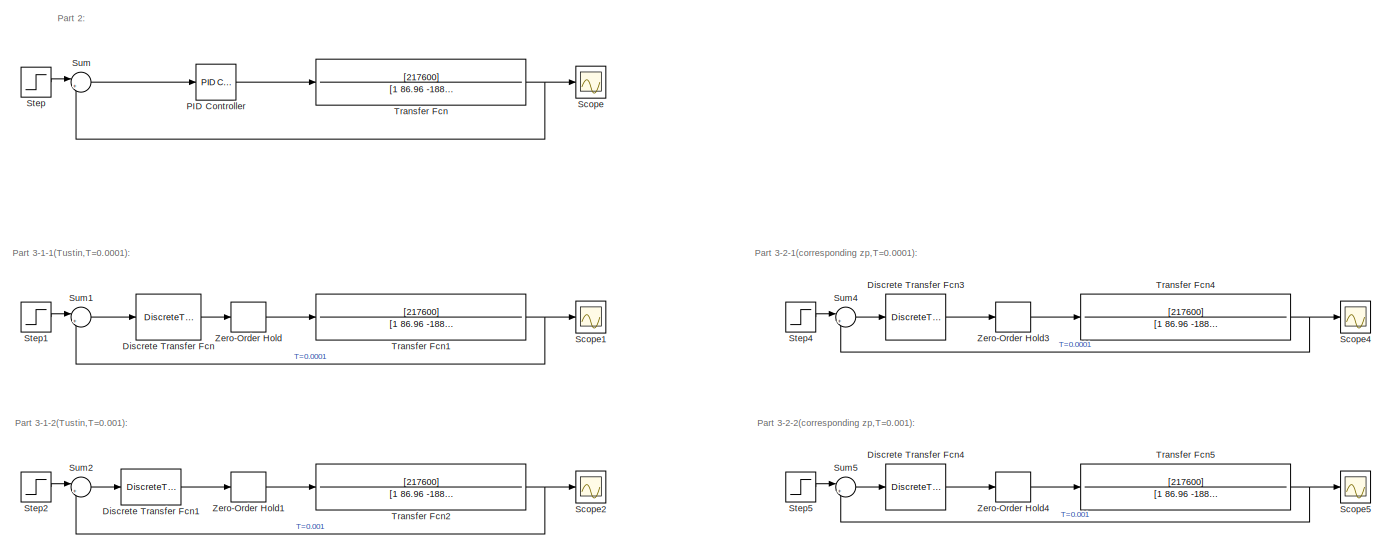
[diagram: root canvas - part 1/3, full width, top band]
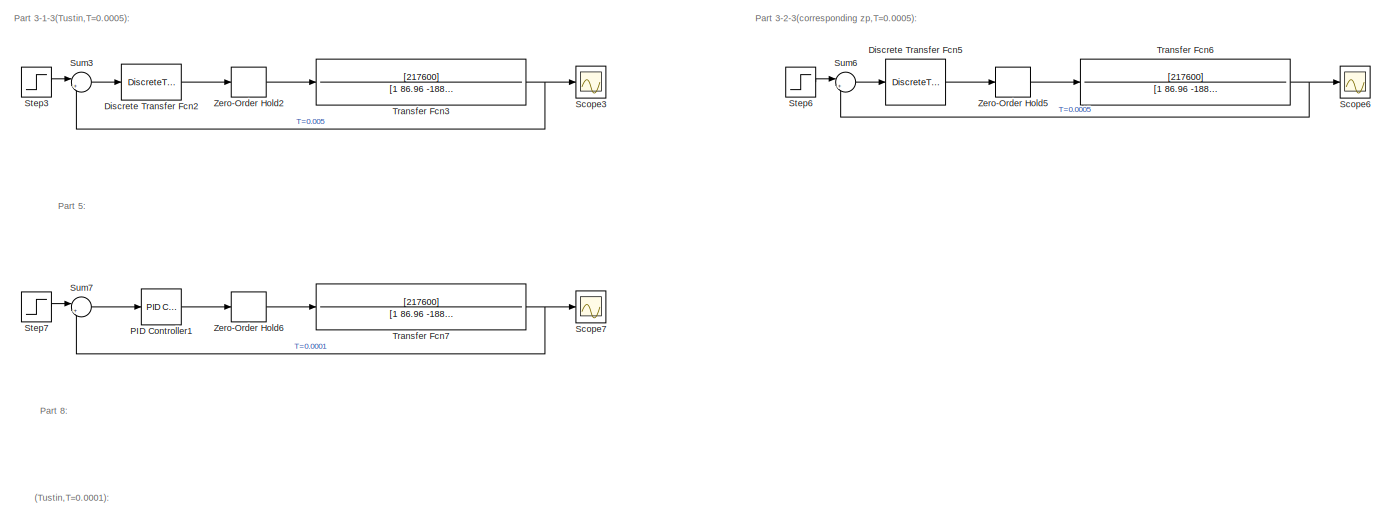
[diagram: root canvas - part 2/3, full width, middle band]
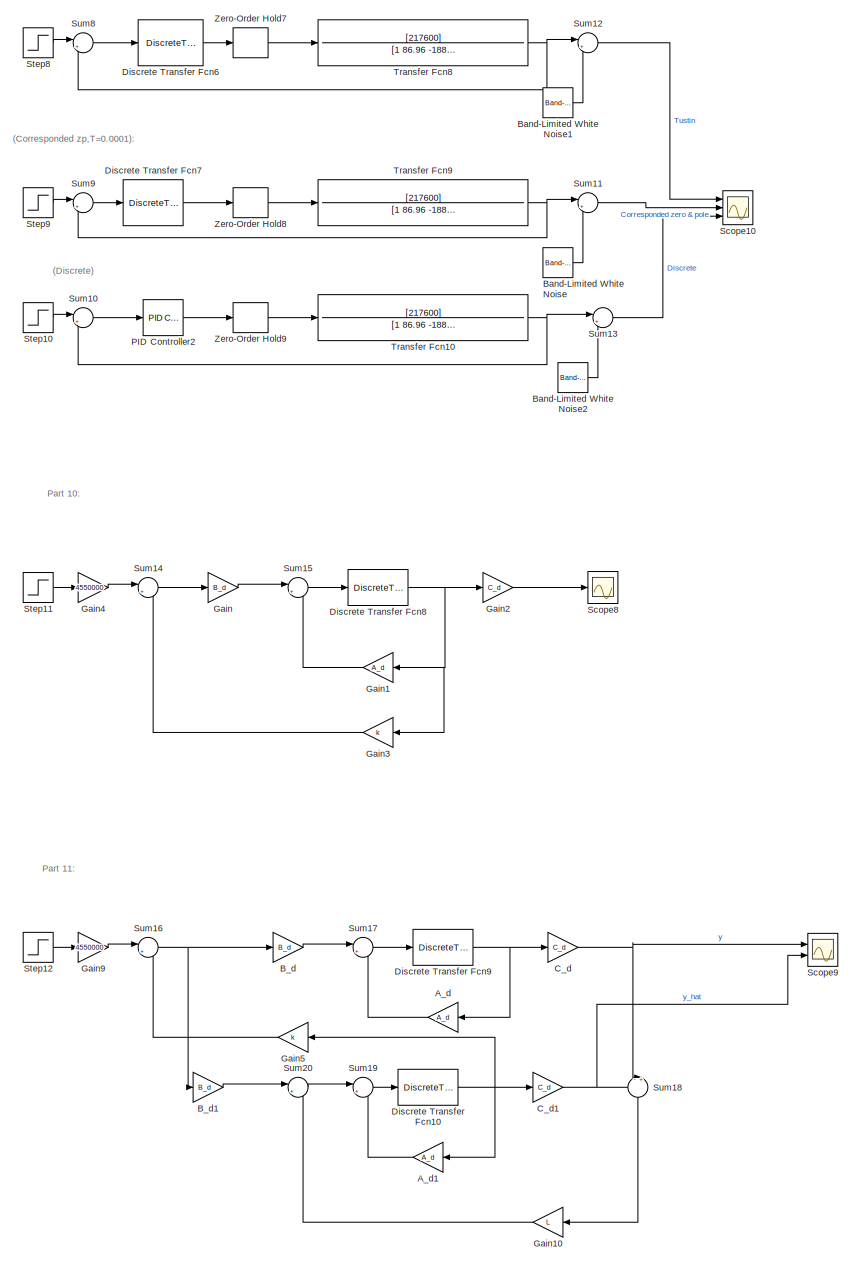
[diagram: root canvas - part 3/3, bottom left region]
MODEL slx_f297e5790525
KIND model
CONFIG AbsTol = auto
CONFIG EnableMultiTasking = off
CONFIG FixedStep = auto
CONFIG MaxStep = auto
CONFIG MinStep = auto
CONFIG RelTol = 1e-3
CONFIG SampleTimeConstraint = Unconstrained
CONFIG SolverName = VariableStepAuto
CONFIG StartTime = 0.0
CONFIG StopTime = 0.01
BLOCK [Gain] A_d
  Gain = A_d
  Multiplication = Matrix(K*u)
  NameLocation = top
BLOCK [Gain] A_d1
  Gain = A_d
  Multiplication = Matrix(K*u)
  NameLocation = top
BLOCK [Gain] B_d
  Gain = B_d
  Multiplication = Matrix(K*u)
BLOCK [Gain] B_d1
  Gain = B_d
  Multiplication = Matrix(K*u)
BLOCK [Reference] Band-Limited White Noise  REF=simulink/Sources/Band-Limited
White Noise
  Ports = [0, 1]
  SourceBlock = simulink/Sources/Band-Limited\nWhite Noise
  SourceProductBaseCode = SL
  SourceType = Band-Limited White Noise.
BLOCK [Reference] Band-Limited White Noise1  REF=simulink/Sources/Band-Limited
White Noise
  Ports = [0, 1]
  SourceBlock = simulink/Sources/Band-Limited\nWhite Noise
  SourceProductBaseCode = SL
  SourceType = Band-Limited White Noise.
BLOCK [Reference] Band-Limited White Noise2  REF=simulink/Sources/Band-Limited
White Noise
  Ports = [0, 1]
  SourceBlock = simulink/Sources/Band-Limited\nWhite Noise
  SourceProductBaseCode = SL
  SourceType = Band-Limited White Noise.
BLOCK [Gain] C_d
  Gain = C_d
  Multiplication = Matrix(K*u)
BLOCK [Gain] C_d1
  Gain = C_d
  Multiplication = Matrix(K*u)
BLOCK [DiscreteTransferFcn] Discrete Transfer Fcn
  Denominator = [9.86914200000000 -8 -1.86914200000000]
  InputPortMap = u0
  Numerator = [38570.0258267180 -77058.6188660459 38488.6093872360]
  Ports = [1, 1]
  SampleTime = 0.0001
BLOCK [DiscreteTransferFcn] Discrete Transfer Fcn1
  Denominator = [62.6914200000000 -8 -54.6914200000000]
  InputPortMap = u0
  Numerator = [38936.8044151132 -77057.8096445937 38122.6400202932]
  Ports = [1, 1]
  SampleTime = 0.001
BLOCK [DiscreteTransferFcn] Discrete Transfer Fcn10
  Denominator = [1 0]
  InputPortMap = u0
  Ports = [1, 1]
BLOCK [DiscreteTransferFcn] Discrete Transfer Fcn2
  Denominator = [33.3457100000000 -8.00000000000000 -25.3457100000000]
  InputPortMap = u0
  Numerator = [38732.9567931308 -77058.4226911484 38325.8745957208]
  Ports = [1, 1]
  SampleTime = 0.0005
BLOCK [DiscreteTransferFcn] Discrete Transfer Fcn3
  Denominator = [1 -1.05315351727480 0.0531535172747958]
  InputPortMap = u0
  Numerator = 1000*[1 -1.99788732081826 0.997889127214699]
  Ports = [1, 1]
  SampleTime = 0.0001
BLOCK [DiscreteTransferFcn] Discrete Transfer Fcn4
  Denominator = [1 -1.00000000000018 1.80019719003715e-13]
  InputPortMap = u0
  Numerator = 1000*[1 -1.97891172719588 0.979090657910839]
  Ports = [1, 1]
  SampleTime = 0.001
BLOCK [DiscreteTransferFcn] Discrete Transfer Fcn5
  Denominator = [1 -1.00000042428731 4.24287307144245e-07]
  InputPortMap = u0
  Numerator = [1000 -1989.44513045919 989.490099955951]
  Ports = [1, 1]
  SampleTime = 0.0005
BLOCK [DiscreteTransferFcn] Discrete Transfer Fcn6
  Denominator = [9.86914200000000 -8 -1.86914200000000]
  InputPortMap = u0
  Numerator = [38570.0258267180 -77058.6188660459 38488.6093872360]
  Ports = [1, 1]
  SampleTime = 0.0001
BLOCK [DiscreteTransferFcn] Discrete Transfer Fcn7
  Denominator = [1 -1.05315351727480 0.0531535172747958]
  InputPortMap = u0
  Numerator = 1000*[1 -1.99788732081826 0.997889127214699]
  Ports = [1, 1]
  SampleTime = 0.0001
BLOCK [DiscreteTransferFcn] Discrete Transfer Fcn8
  Denominator = [1 0]
  InputPortMap = u0
  Ports = [1, 1]
BLOCK [DiscreteTransferFcn] Discrete Transfer Fcn9
  Denominator = [1 0]
  InputPortMap = u0
  Ports = [1, 1]
BLOCK [Gain] Gain
  Gain = B_d
  Multiplication = Matrix(K*u)
BLOCK [Gain] Gain1
  Gain = A_d
  Multiplication = Matrix(K*u)
  NameLocation = top
BLOCK [Gain] Gain10
  Gain = L
  Multiplication = Matrix(K*u)
  NameLocation = top
BLOCK [Gain] Gain2
  Gain = C_d
  Multiplication = Matrix(K*u)
BLOCK [Gain] Gain3
  Gain = k
  Multiplication = Matrix(K*u)
  NameLocation = top
BLOCK [Gain] Gain4
  Gain = 4550000
BLOCK [Gain] Gain5
  Gain = k
  Multiplication = Matrix(K*u)
  NameLocation = top
BLOCK [Gain] Gain9
  Gain = 4550000
BLOCK [Reference] PID Controller  REF=slpidlib/PID Controller
  Ports = [1, 1]
  SourceBlock = slpidlib/PID Controller
  SourceProductBaseCode = SL
  SourceType = PID 1dof
BLOCK [Reference] PID Controller1  REF=slpidlib/PID Controller
  Ports = [1, 1]
  SourceBlock = slpidlib/PID Controller
  SourceProductBaseCode = SL
  SourceType = PID 1dof
BLOCK [Reference] PID Controller2  REF=slpidlib/PID Controller
  Ports = [1, 1]
  SourceBlock = slpidlib/PID Controller
  SourceProductBaseCode = SL
  SourceType = PID 1dof
BLOCK [Scope] Scope
  Floating = off
  NumInputPorts = 1
  Ports = [1]
  ScopeSpecificationString = Simulink.scopes.TimeScopeBlockCfg('CurrentConfiguration', extmgr.ConfigurationSet(extmgr.Configuration('Core','General UI',true,'FigureColor',[1 1 1]),extmgr.Configuration('Core','Source UI',true),extmgr.Configuration('Sources','WiredSimulink',true),extmgr.Configuration('Visuals','Time Domain',true,'SerializedDisplays',{struct('MinYLimReal','-0.22122','MaxYLimReal','1.991','YLabelReal','','MinYLim...<+1395ch>
BLOCK [Scope] Scope1
  Floating = off
  NumInputPorts = 1
  Ports = [1]
  ScopeSpecificationString = Simulink.scopes.TimeScopeBlockCfg('CurrentConfiguration', extmgr.ConfigurationSet(extmgr.Configuration('Core','General UI',true,'FigureColor',[1 1 1]),extmgr.Configuration('Core','Source UI',true),extmgr.Configuration('Sources','WiredSimulink',true,'DataLoggingVariableName','ScopeData1'),extmgr.Configuration('Visuals','Time Domain',true,'SerializedDisplays',{struct('MinYLimReal','-0.22322','MaxYLi...<+1438ch>
BLOCK [Scope] Scope10
  Floating = off
  NumInputPorts = 3
  Ports = [3]
  ScopeSpecificationString = Simulink.scopes.TimeScopeBlockCfg('CurrentConfiguration', extmgr.ConfigurationSet(extmgr.Configuration('Core','General UI',true,'FigureColor',[1 1 1]),extmgr.Configuration('Core','Source UI',true),extmgr.Configuration('Sources','WiredSimulink',true,'DataLoggingVariableName','ScopeData3'),extmgr.Configuration('Visuals','Time Domain',true,'SerializedDisplays',{struct('MinYLimReal','-0.21833','MaxYLi...<+1514ch>
BLOCK [Scope] Scope2
  Floating = off
  NumInputPorts = 1
  Ports = [1]
  ScopeSpecificationString = Simulink.scopes.TimeScopeBlockCfg('CurrentConfiguration', extmgr.ConfigurationSet(extmgr.Configuration('Core','General UI',true,'FigureColor',[1 1 1]),extmgr.Configuration('Core','Source UI',true),extmgr.Configuration('Sources','WiredSimulink',true,'DataLoggingVariableName','ScopeData2'),extmgr.Configuration('Visuals','Time Domain',true,'SerializedDisplays',{struct('MinYLimReal','-0.24372','MaxYLi...<+1436ch>
BLOCK [Scope] Scope3
  Floating = off
  NumInputPorts = 1
  Ports = [1]
  ScopeSpecificationString = Simulink.scopes.TimeScopeBlockCfg('CurrentConfiguration', extmgr.ConfigurationSet(extmgr.Configuration('Core','General UI',true,'FigureColor',[1 1 1]),extmgr.Configuration('Core','Source UI',true),extmgr.Configuration('Sources','WiredSimulink',true,'DataLoggingVariableName','ScopeData3'),extmgr.Configuration('Visuals','Time Domain',true,'SerializedDisplays',{struct('MinYLimReal','-0.23172','MaxYLi...<+1437ch>
BLOCK [Scope] Scope4
  Floating = off
  NumInputPorts = 1
  Ports = [1]
  ScopeSpecificationString = Simulink.scopes.TimeScopeBlockCfg('CurrentConfiguration', extmgr.ConfigurationSet(extmgr.Configuration('Core','General UI',true,'FigureColor',[1 1 1]),extmgr.Configuration('Core','Source UI',true),extmgr.Configuration('Sources','WiredSimulink',true,'DataLoggingVariableName','ScopeData4'),extmgr.Configuration('Visuals','Time Domain',true,'SerializedDisplays',{struct('MinYLimReal','-0.22385','MaxYLi...<+1436ch>
BLOCK [Scope] Scope5
  Floating = off
  NumInputPorts = 1
  Ports = [1]
  ScopeSpecificationString = Simulink.scopes.TimeScopeBlockCfg('CurrentConfiguration', extmgr.ConfigurationSet(extmgr.Configuration('Core','General UI',true,'FigureColor',[1 1 1]),extmgr.Configuration('Core','Source UI',true),extmgr.Configuration('Sources','WiredSimulink',true,'DataLoggingVariableName','ScopeData1'),extmgr.Configuration('Visuals','Time Domain',true,'SerializedDisplays',{struct('MinYLimReal','-3657307134457941...<+3595ch>
BLOCK [Scope] Scope6
  Floating = off
  NumInputPorts = 1
  Ports = [1]
  ScopeSpecificationString = Simulink.scopes.TimeScopeBlockCfg('CurrentConfiguration', extmgr.ConfigurationSet(extmgr.Configuration('Core','General UI',true,'FigureColor',[1 1 1]),extmgr.Configuration('Core','Source UI',true),extmgr.Configuration('Sources','WiredSimulink',true,'DataLoggingVariableName','ScopeData2'),extmgr.Configuration('Visuals','Time Domain',true,'SerializedDisplays',{struct('MinYLimReal','-0.25137','MaxYLi...<+1437ch>
BLOCK [Scope] Scope7
  Floating = off
  NumInputPorts = 1
  Ports = [1]
  ScopeSpecificationString = Simulink.scopes.TimeScopeBlockCfg('CurrentConfiguration', extmgr.ConfigurationSet(extmgr.Configuration('Core','General UI',true,'FigureColor',[1 1 1]),extmgr.Configuration('Core','Source UI',true),extmgr.Configuration('Sources','WiredSimulink',true,'DataLoggingVariableName','ScopeData3'),extmgr.Configuration('Visuals','Time Domain',true,'SerializedDisplays',{struct('MinYLimReal','-0.2296','MaxYLim...<+1436ch>
BLOCK [Scope] Scope8
  Floating = off
  NumInputPorts = 1
  Ports = [1]
  ScopeSpecificationString = Simulink.scopes.TimeScopeBlockCfg('CurrentConfiguration', extmgr.ConfigurationSet(extmgr.Configuration('Core','General UI',true,'FigureColor',[1 1 1]),extmgr.Configuration('Core','Source UI',true),extmgr.Configuration('Sources','WiredSimulink',true,'DataLoggingVariableName','ScopeData1'),extmgr.Configuration('Visuals','Time Domain',true,'SerializedDisplays',{struct('MinYLimReal','-0.00025','MaxYLi...<+1431ch>
BLOCK [Scope] Scope9
  Floating = off
  NumInputPorts = 2
  Ports = [2]
  ScopeSpecificationString = Simulink.scopes.TimeScopeBlockCfg('CurrentConfiguration', extmgr.ConfigurationSet(extmgr.Configuration('Core','General UI',true,'FigureColor',[1 1 1]),extmgr.Configuration('Core','Source UI',true),extmgr.Configuration('Sources','WiredSimulink',true,'DataLoggingVariableName','ScopeData1'),extmgr.Configuration('Visuals','Time Domain',true,'SerializedDisplays',{struct('MinYLimReal','-0.12456','MaxYLi...<+1559ch>
BLOCK [Step] Step
  SampleTime = 0
  Time = 0
BLOCK [Step] Step1
  SampleTime = 0
  Time = 0
BLOCK [Step] Step10
  SampleTime = 0
  Time = 0
BLOCK [Step] Step11
  After = 2e-3
  SampleTime = 0
  Time = 0
BLOCK [Step] Step12
  SampleTime = 0
  Time = 0
BLOCK [Step] Step2
  SampleTime = 0
  Time = 0
BLOCK [Step] Step3
  SampleTime = 0
  Time = 0
BLOCK [Step] Step4
  SampleTime = 0
  Time = 0
BLOCK [Step] Step5
  SampleTime = 0
  Time = 0
BLOCK [Step] Step6
  SampleTime = 0
  Time = 0
BLOCK [Step] Step7
  SampleTime = 0
  Time = 0
BLOCK [Step] Step8
  SampleTime = 0
  Time = 0
BLOCK [Step] Step9
  SampleTime = 0
  Time = 0
BLOCK [Sum] Sum
  Inputs = |+-
  Ports = [2, 1]
BLOCK [Sum] Sum1
  Inputs = |+-
  Ports = [2, 1]
BLOCK [Sum] Sum10
  Inputs = |+-
  Ports = [2, 1]
BLOCK [Sum] Sum11
  Inputs = |++
  Ports = [2, 1]
BLOCK [Sum] Sum12
  Inputs = |++
  Ports = [2, 1]
BLOCK [Sum] Sum13
  Inputs = |++
  Ports = [2, 1]
BLOCK [Sum] Sum14
  Inputs = |+-
  Ports = [2, 1]
BLOCK [Sum] Sum15
  Inputs = |++
  Ports = [2, 1]
BLOCK [Sum] Sum16
  Inputs = |+-
  Ports = [2, 1]
BLOCK [Sum] Sum17
  Inputs = |++
  Ports = [2, 1]
BLOCK [Sum] Sum18
  Inputs = -+|
  NameLocation = left
  Ports = [2, 1]
BLOCK [Sum] Sum19
  Inputs = |++
  Ports = [2, 1]
BLOCK [Sum] Sum2
  Inputs = |+-
  Ports = [2, 1]
BLOCK [Sum] Sum20
  Inputs = |++
  Ports = [2, 1]
BLOCK [Sum] Sum3
  Inputs = |+-
  Ports = [2, 1]
BLOCK [Sum] Sum4
  Inputs = |+-
  Ports = [2, 1]
BLOCK [Sum] Sum5
  Inputs = |+-
  Ports = [2, 1]
BLOCK [Sum] Sum6
  Inputs = |+-
  Ports = [2, 1]
BLOCK [Sum] Sum7
  Inputs = |+-
  Ports = [2, 1]
BLOCK [Sum] Sum8
  Inputs = |+-
  Ports = [2, 1]
BLOCK [Sum] Sum9
  Inputs = |+-
  Ports = [2, 1]
BLOCK [TransferFcn] Transfer Fcn
  Denominator = [1 86.96 -1887 -164000]
  Numerator = [217600]
BLOCK [TransferFcn] Transfer Fcn1
  Denominator = [1 86.96 -1887 -164000]
  Numerator = [217600]
BLOCK [TransferFcn] Transfer Fcn10
  Denominator = [1 86.96 -1887 -164000]
  Numerator = [217600]
BLOCK [TransferFcn] Transfer Fcn2
  Denominator = [1 86.96 -1887 -164000]
  Numerator = [217600]
BLOCK [TransferFcn] Transfer Fcn3
  Denominator = [1 86.96 -1887 -164000]
  Numerator = [217600]
BLOCK [TransferFcn] Transfer Fcn4
  Denominator = [1 86.96 -1887 -164000]
  Numerator = [217600]
BLOCK [TransferFcn] Transfer Fcn5
  Denominator = [1 86.96 -1887 -164000]
  Numerator = [217600]
BLOCK [TransferFcn] Transfer Fcn6
  Denominator = [1 86.96 -1887 -164000]
  Numerator = [217600]
BLOCK [TransferFcn] Transfer Fcn7
  Denominator = [1 86.96 -1887 -164000]
  Numerator = [217600]
BLOCK [TransferFcn] Transfer Fcn8
  Denominator = [1 86.96 -1887 -164000]
  Numerator = [217600]
BLOCK [TransferFcn] Transfer Fcn9
  Denominator = [1 86.96 -1887 -164000]
  Numerator = [217600]
BLOCK [ZeroOrderHold] Zero-Order Hold
  SampleTime = 0.0001
BLOCK [ZeroOrderHold] Zero-Order Hold1
  SampleTime = 0.001
BLOCK [ZeroOrderHold] Zero-Order Hold2
  SampleTime = 0.0005
BLOCK [ZeroOrderHold] Zero-Order Hold3
  SampleTime = 0.0001
BLOCK [ZeroOrderHold] Zero-Order Hold4
  SampleTime = 0.001
BLOCK [ZeroOrderHold] Zero-Order Hold5
  SampleTime = 0.0005
BLOCK [ZeroOrderHold] Zero-Order Hold6
  SampleTime = 0.0001
BLOCK [ZeroOrderHold] Zero-Order Hold7
  SampleTime = 0.0001
BLOCK [ZeroOrderHold] Zero-Order Hold8
  SampleTime = 0.0001
BLOCK [ZeroOrderHold] Zero-Order Hold9
  SampleTime = 0.0001
ANNOTATION (root): (Corresponded zp,T=0.0001):
ANNOTATION (root): (Tustin,T=0.0001):
ANNOTATION (root): Part 10:
ANNOTATION (root): Part 11:
ANNOTATION (root): Part 2:
ANNOTATION (root): Part 3-1-1(Tustin,T=0.0001):
ANNOTATION (root): Part 3-1-2(Tustin,T=0.001):
ANNOTATION (root): Part 3-1-3(Tustin,T=0.0005):
ANNOTATION (root): Part 3-2-1(corresponding zp,T=0.0001):
ANNOTATION (root): Part 3-2-2(corresponding zp,T=0.001):
ANNOTATION (root): Part 3-2-3(corresponding zp,T=0.0005):
ANNOTATION (root): Part 5:
ANNOTATION (root): (Discrete)
ANNOTATION (root): Part 8:
LINE A_d1:1 -> Sum19:2
LINE A_d:1 -> Sum17:2
LINE B_d1:1 -> Sum20:1
LINE B_d:1 -> Sum17:1
LINE Band-Limited White Noise1:1 -> Sum12:2
LINE Band-Limited White Noise2:1 -> Sum13:2
LINE Band-Limited White Noise:1 -> Sum11:2
NET C_d1:1 -> Scope9:2, Sum18:1
NET C_d:1 -> Scope9:1, Sum18:2
NET Discrete Transfer Fcn10:1 -> A_d1:1, C_d1:1, Gain5:1
LINE Discrete Transfer Fcn1:1 -> Zero-Order Hold1:1
LINE Discrete Transfer Fcn2:1 -> Zero-Order Hold2:1
LINE Discrete Transfer Fcn3:1 -> Zero-Order Hold3:1
LINE Discrete Transfer Fcn4:1 -> Zero-Order Hold4:1
LINE Discrete Transfer Fcn5:1 -> Zero-Order Hold5:1
LINE Discrete Transfer Fcn6:1 -> Zero-Order Hold7:1
LINE Discrete Transfer Fcn7:1 -> Zero-Order Hold8:1
NET Discrete Transfer Fcn8:1 -> Gain1:1, Gain2:1, Gain3:1
NET Discrete Transfer Fcn9:1 -> A_d:1, C_d:1
LINE Discrete Transfer Fcn:1 -> Zero-Order Hold:1
LINE Gain10:1 -> Sum20:2
LINE Gain1:1 -> Sum15:2
LINE Gain2:1 -> Scope8:1
LINE Gain3:1 -> Sum14:2
LINE Gain4:1 -> Sum14:1
LINE Gain5:1 -> Sum16:2
LINE Gain9:1 -> Sum16:1
LINE Gain:1 -> Sum15:1
LINE PID Controller1:1 -> Zero-Order Hold6:1
LINE PID Controller2:1 -> Zero-Order Hold9:1
LINE PID Controller:1 -> Transfer Fcn:1
LINE Step10:1 -> Sum10:1
LINE Step11:1 -> Gain4:1
LINE Step12:1 -> Gain9:1
LINE Step1:1 -> Sum1:1
LINE Step2:1 -> Sum2:1
LINE Step3:1 -> Sum3:1
LINE Step4:1 -> Sum4:1
LINE Step5:1 -> Sum5:1
LINE Step6:1 -> Sum6:1
LINE Step7:1 -> Sum7:1
LINE Step8:1 -> Sum8:1
LINE Step9:1 -> Sum9:1
LINE Step:1 -> Sum:1
LINE Sum10:1 -> PID Controller2:1
LINE Sum11:1 -> Scope10:2
LINE Sum12:1 -> Scope10:1
LINE Sum13:1 -> Scope10:3
LINE Sum14:1 -> Gain:1
LINE Sum15:1 -> Discrete Transfer Fcn8:1
NET Sum16:1 -> B_d1:1, B_d:1
LINE Sum17:1 -> Discrete Transfer Fcn9:1
LINE Sum18:1 -> Gain10:1
LINE Sum19:1 -> Discrete Transfer Fcn10:1
LINE Sum1:1 -> Discrete Transfer Fcn:1
LINE Sum20:1 -> Sum19:1
LINE Sum2:1 -> Discrete Transfer Fcn1:1
LINE Sum3:1 -> Discrete Transfer Fcn2:1
LINE Sum4:1 -> Discrete Transfer Fcn3:1
LINE Sum5:1 -> Discrete Transfer Fcn4:1
LINE Sum6:1 -> Discrete Transfer Fcn5:1
LINE Sum7:1 -> PID Controller1:1
LINE Sum8:1 -> Discrete Transfer Fcn6:1
LINE Sum9:1 -> Discrete Transfer Fcn7:1
LINE Sum:1 -> PID Controller:1
NET Transfer Fcn10:1 -> Sum10:2, Sum13:1
NET Transfer Fcn1:1 -> Scope1:1, Sum1:2
NET Transfer Fcn2:1 -> Scope2:1, Sum2:2
NET Transfer Fcn3:1 -> Scope3:1, Sum3:2
NET Transfer Fcn4:1 -> Scope4:1, Sum4:2
NET Transfer Fcn5:1 -> Scope5:1, Sum5:2
NET Transfer Fcn6:1 -> Scope6:1, Sum6:2
NET Transfer Fcn7:1 -> Scope7:1, Sum7:2
NET Transfer Fcn8:1 -> Sum12:1, Sum8:2
NET Transfer Fcn9:1 -> Sum11:1, Sum9:2
NET Transfer Fcn:1 -> Scope:1, Sum:2
LINE Zero-Order Hold1:1 -> Transfer Fcn2:1
LINE Zero-Order Hold2:1 -> Transfer Fcn3:1
LINE Zero-Order Hold3:1 -> Transfer Fcn4:1
LINE Zero-Order Hold4:1 -> Transfer Fcn5:1
LINE Zero-Order Hold5:1 -> Transfer Fcn6:1
LINE Zero-Order Hold6:1 -> Transfer Fcn7:1
LINE Zero-Order Hold7:1 -> Transfer Fcn8:1
LINE Zero-Order Hold8:1 -> Transfer Fcn9:1
LINE Zero-Order Hold9:1 -> Transfer Fcn10:1
LINE Zero-Order Hold:1 -> Transfer Fcn1:1
note: NET lines group one-source signal fan-out (src -> all destinations, sorted); 1:1 wires keep LINE
